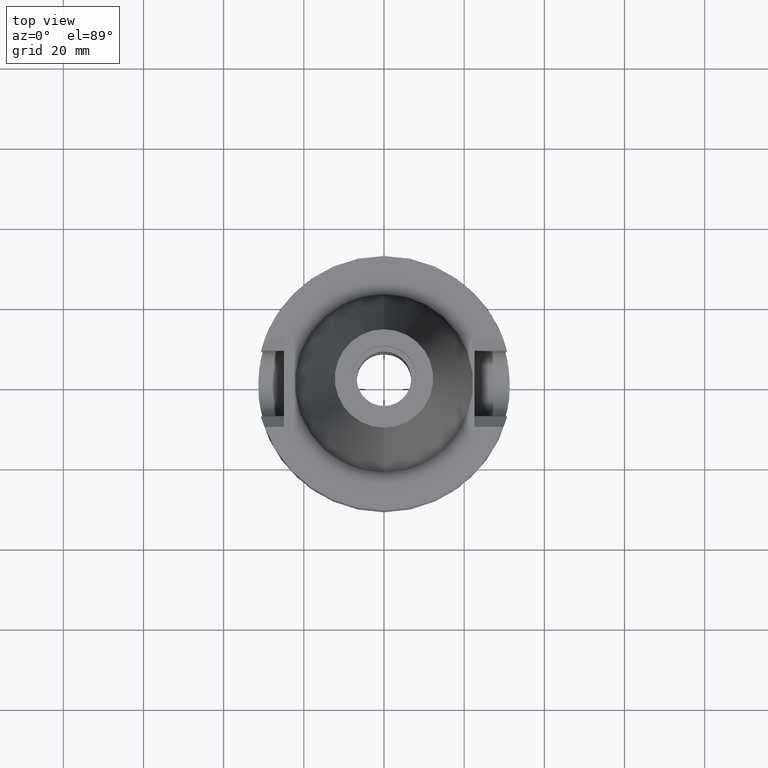
[diagram: clean part render]
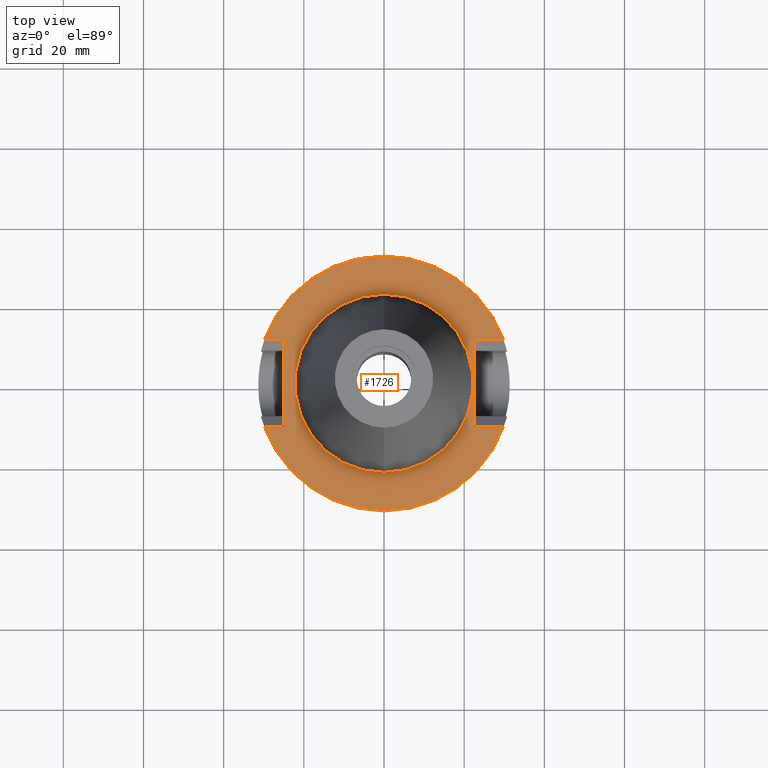
[diagram: same view with one face highlighted and labeled with its STEP entity id]
A machine part, top view. The second image highlights one B-rep face of the part: STEP entity #1726.
In plain terms, the highlighted planar face has unit normal (0, 0, 1).
Its self-contained STEP definition (entity closure, byte-faithful):
#94=DIRECTION('',(0.E0,-1.E0,0.E0));
#95=VECTOR('',#94,2.178E1);
#96=CARTESIAN_POINT('',(2.257E1,1.089E1,-1.E0));
#97=LINE('',#96,#95);
#101=DIRECTION('',(1.E0,5.632238998453E-14,0.E0));
#102=VECTOR('',#101,7.253990343347E0);
#103=CARTESIAN_POINT('',(2.257E1,-1.089E1,-1.E0));
#104=LINE('',#103,#102);
#108=CARTESIAN_POINT('',(0.E0,0.E0,-1.E0));
#109=DIRECTION('',(0.E0,0.E0,-1.E0));
#110=DIRECTION('',(9.393382785306E-1,-3.429921259843E-1,0.E0));
#111=AXIS2_PLACEMENT_3D('',#108,#109,#110);
#116=CARTESIAN_POINT('',(0.E0,0.E0,-1.E0));
#117=DIRECTION('',(0.E0,0.E0,-1.E0));
#118=DIRECTION('',(0.E0,-1.E0,0.E0));
#119=AXIS2_PLACEMENT_3D('',#116,#117,#118);
#124=DIRECTION('',(-1.E0,-8.617768155388E-14,0.E0));
#125=VECTOR('',#124,4.843990343348E0);
#126=CARTESIAN_POINT('',(-2.498E1,1.089E1,-1.E0));
#127=LINE('',#126,#125);
#131=CARTESIAN_POINT('',(0.E0,0.E0,-1.E0));
#132=DIRECTION('',(0.E0,0.E0,-1.E0));
#133=DIRECTION('',(-9.393382785306E-1,3.429921259843E-1,0.E0));
#134=AXIS2_PLACEMENT_3D('',#131,#132,#133);
#139=CARTESIAN_POINT('',(0.E0,0.E0,-1.E0));
#140=DIRECTION('',(0.E0,0.E0,-1.E0));
#141=DIRECTION('',(0.E0,1.E0,0.E0));
#142=AXIS2_PLACEMENT_3D('',#139,#140,#141);
#147=CARTESIAN_POINT('',(0.E0,0.E0,-9.999999999999E-1));
#148=DIRECTION('',(0.E0,0.E0,1.E0));
#149=DIRECTION('',(0.E0,-1.E0,0.E0));
#150=AXIS2_PLACEMENT_3D('',#147,#148,#149);
#155=CARTESIAN_POINT('',(0.E0,0.E0,-9.999999999999E-1));
#156=DIRECTION('',(0.E0,0.E0,1.E0));
#157=DIRECTION('',(0.E0,1.E0,0.E0));
#158=AXIS2_PLACEMENT_3D('',#155,#156,#157);
#222=DIRECTION('',(1.E0,-5.730190981035E-14,0.E0));
#223=VECTOR('',#222,7.253990343348E0);
#224=CARTESIAN_POINT('',(2.257E1,1.089E1,-1.E0));
#225=LINE('',#224,#223);
#575=DIRECTION('',(0.E0,-1.E0,0.E0));
#576=VECTOR('',#575,2.178E1);
#577=CARTESIAN_POINT('',(-2.498E1,1.089E1,-1.E0));
#578=LINE('',#577,#576);
#643=DIRECTION('',(-1.E0,8.617768155388E-14,0.E0));
#644=VECTOR('',#643,4.843990343348E0);
#645=CARTESIAN_POINT('',(-2.498E1,-1.089E1,-1.E0));
#646=LINE('',#645,#644);
#1402=CARTESIAN_POINT('',(0.E0,2.2225E1,-1.E0));
#1403=VERTEX_POINT('',#1402);
#1404=CARTESIAN_POINT('',(0.E0,-2.2225E1,-9.999999999999E-1));
#1405=VERTEX_POINT('',#1404);
#1406=CARTESIAN_POINT('',(2.257E1,1.089E1,-1.E0));
#1407=CARTESIAN_POINT('',(2.257E1,-1.089E1,-1.E0));
#1408=VERTEX_POINT('',#1406);
#1409=VERTEX_POINT('',#1407);
#1410=CARTESIAN_POINT('',(2.982399034335E1,-1.089E1,-1.E0));
#1411=VERTEX_POINT('',#1410);
#1412=CARTESIAN_POINT('',(0.E0,-3.175E1,-1.E0));
#1413=CARTESIAN_POINT('',(-2.982399034335E1,-1.089E1,-1.E0));
#1414=VERTEX_POINT('',#1412);
#1415=VERTEX_POINT('',#1413);
#1416=CARTESIAN_POINT('',(-2.498E1,-1.089E1,-1.E0));
#1417=VERTEX_POINT('',#1416);
#1418=CARTESIAN_POINT('',(-2.498E1,1.089E1,-1.E0));
#1419=VERTEX_POINT('',#1418);
#1420=CARTESIAN_POINT('',(-2.982399034335E1,1.089E1,-1.E0));
#1421=VERTEX_POINT('',#1420);
#1422=CARTESIAN_POINT('',(0.E0,3.175E1,-1.E0));
#1423=CARTESIAN_POINT('',(2.982399034335E1,1.089E1,-1.E0));
#1424=VERTEX_POINT('',#1422);
#1425=VERTEX_POINT('',#1423);
#1695=CARTESIAN_POINT('',(0.E0,0.E0,-1.E0));
#1696=DIRECTION('',(0.E0,0.E0,1.E0));
#1697=DIRECTION('',(0.E0,1.E0,0.E0));
#1698=AXIS2_PLACEMENT_3D('',#1695,#1696,#1697);
#1699=PLANE('',#1698);
#1701=ORIENTED_EDGE('',*,*,#1700,.T.);
#1703=ORIENTED_EDGE('',*,*,#1702,.T.);
#1705=ORIENTED_EDGE('',*,*,#1704,.T.);
#1707=ORIENTED_EDGE('',*,*,#1706,.T.);
#1709=ORIENTED_EDGE('',*,*,#1708,.F.);
#1711=ORIENTED_EDGE('',*,*,#1710,.F.);
#1713=ORIENTED_EDGE('',*,*,#1712,.T.);
#1715=ORIENTED_EDGE('',*,*,#1714,.T.);
#1717=ORIENTED_EDGE('',*,*,#1716,.T.);
#1719=ORIENTED_EDGE('',*,*,#1718,.F.);
#1720=EDGE_LOOP('',(#1701,#1703,#1705,#1707,#1709,#1711,#1713,#1715,#1717,
#1719));
#1721=FACE_OUTER_BOUND('',#1720,.F.);
#1722=ORIENTED_EDGE('',*,*,#1674,.T.);
#1723=ORIENTED_EDGE('',*,*,#1690,.T.);
#1724=EDGE_LOOP('',(#1722,#1723));
#1725=FACE_BOUND('',#1724,.F.);
#112=CIRCLE('',#111,3.175E1);
#120=CIRCLE('',#119,3.175E1);
#135=CIRCLE('',#134,3.175E1);
#143=CIRCLE('',#142,3.175E1);
#151=CIRCLE('',#150,2.2225E1);
#159=CIRCLE('',#158,2.2225E1);
#1674=EDGE_CURVE('',#1405,#1403,#151,.T.);
#1690=EDGE_CURVE('',#1403,#1405,#159,.T.);
#1700=EDGE_CURVE('',#1408,#1409,#97,.T.);
#1702=EDGE_CURVE('',#1409,#1411,#104,.T.);
#1704=EDGE_CURVE('',#1411,#1414,#112,.T.);
#1706=EDGE_CURVE('',#1414,#1415,#120,.T.);
#1708=EDGE_CURVE('',#1417,#1415,#646,.T.);
#1710=EDGE_CURVE('',#1419,#1417,#578,.T.);
#1712=EDGE_CURVE('',#1419,#1421,#127,.T.);
#1714=EDGE_CURVE('',#1421,#1424,#135,.T.);
#1716=EDGE_CURVE('',#1424,#1425,#143,.T.);
#1718=EDGE_CURVE('',#1408,#1425,#225,.T.);
#1726=ADVANCED_FACE('',(#1721,#1725),#1699,.T.);